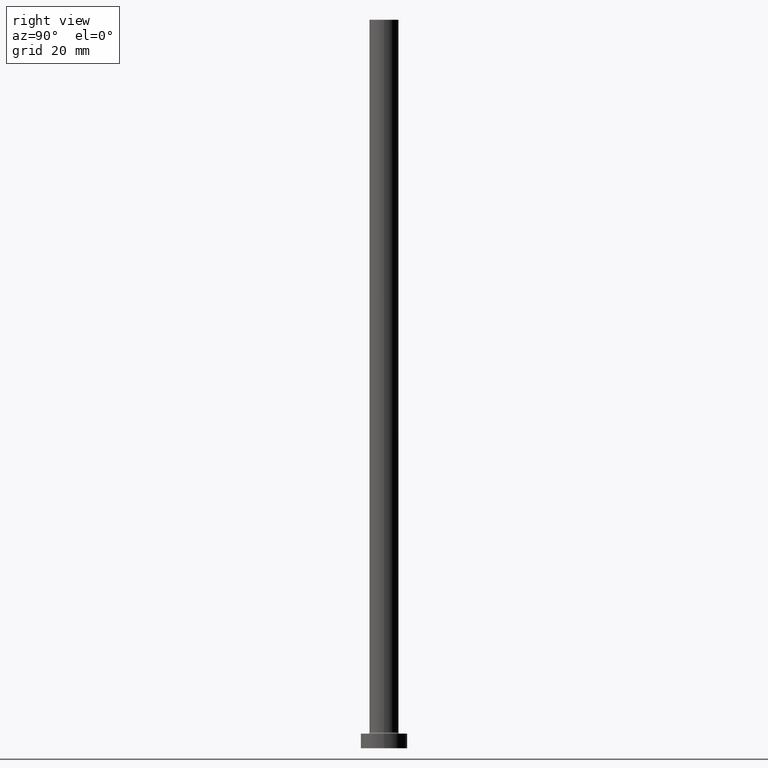
[diagram: clean part render]
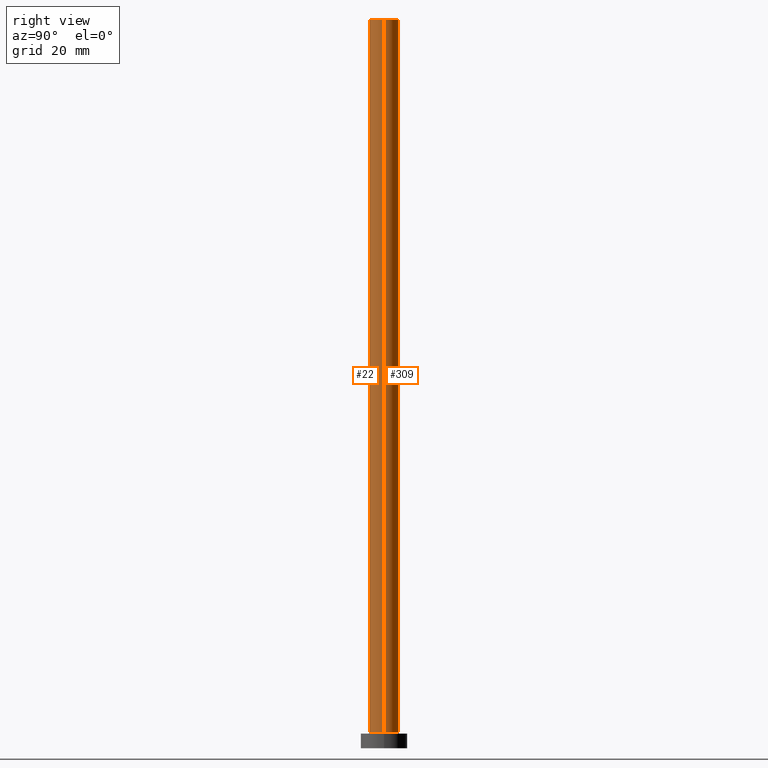
[diagram: same view with one multi-face feature highlighted, each face labeled with its STEP entity id]
A machine part, right view. The highlighted faces form ONE feature: a constant-radius fillet chain: 2 tangent blend faces with common blend radius 5 mm. The faces share edges in the B-rep.
Their STEP definitions:
[1] entity #309 (Cylinder):
#9 = EDGE_CURVE ( 'NONE', #207, #307, #457, .T. ) ;
#18 = CYLINDRICAL_SURFACE ( 'NONE', #292, 5.000000000000000000 ) ;
#39 = AXIS2_PLACEMENT_3D ( 'NONE', #220, #285, #218 ) ;
#50 = DIRECTION ( 'NONE',  ( 0.000000000000000000, 0.000000000000000000, 1.000000000000000000 ) ) ;
#85 = DIRECTION ( 'NONE',  ( -1.000000000000000000, 0.000000000000000000, 0.000000000000000000 ) ) ;
#89 = CIRCLE ( 'NONE', #39, 5.000000000000000000 ) ;
#94 = ORIENTED_EDGE ( 'NONE', *, *, #192, .T. ) ;
#123 = VERTEX_POINT ( 'NONE', #295 ) ;
#125 = DIRECTION ( 'NONE',  ( 1.000000000000000000, 0.000000000000000000, 0.000000000000000000 ) ) ;
#133 = ORIENTED_EDGE ( 'NONE', *, *, #214, .T. ) ;
#146 = FACE_OUTER_BOUND ( 'NONE', #325, .T. ) ;
#155 = DIRECTION ( 'NONE',  ( -0.000000000000000000, -0.000000000000000000, -1.000000000000000000 ) ) ;
#176 = LINE ( 'NONE', #322, #274 ) ;
#179 = CARTESIAN_POINT ( 'NONE',  ( -5.000000000000000000, 0.000000000000000000, 250.0000000000000000 ) ) ;
#192 = EDGE_CURVE ( 'NONE', #207, #123, #176, .T. ) ;
#199 = EDGE_CURVE ( 'NONE', #307, #444, #429, .T. ) ;
#207 = VERTEX_POINT ( 'NONE', #289 ) ;
#214 = EDGE_CURVE ( 'NONE', #123, #444, #89, .T. ) ;
#217 = CARTESIAN_POINT ( 'NONE',  ( -5.000000000000000000, 0.000000000000000000, 250.0000000000000000 ) ) ;
#218 = DIRECTION ( 'NONE',  ( 1.000000000000000000, 0.000000000000000000, 0.000000000000000000 ) ) ;
#220 = CARTESIAN_POINT ( 'NONE',  ( 0.000000000000000000, 0.000000000000000000, 5.500000000000005329 ) ) ;
#253 = VECTOR ( 'NONE', #363, 1000.000000000000000 ) ;
#260 = CARTESIAN_POINT ( 'NONE',  ( 0.000000000000000000, 0.000000000000000000, 250.0000000000000000 ) ) ;
#269 = ORIENTED_EDGE ( 'NONE', *, *, #199, .F. ) ;
#274 = VECTOR ( 'NONE', #362, 1000.000000000000000 ) ;
#285 = DIRECTION ( 'NONE',  ( 0.000000000000000000, 0.000000000000000000, 1.000000000000000000 ) ) ;
#289 = CARTESIAN_POINT ( 'NONE',  ( 5.000000000000000000, 6.123233995736766282E-16, 250.0000000000000000 ) ) ;
#292 = AXIS2_PLACEMENT_3D ( 'NONE', #367, #155, #85 ) ;
#295 = CARTESIAN_POINT ( 'NONE',  ( 5.000000000000000000, 6.123233995736766282E-16, 5.500000000000005329 ) ) ;
#307 = VERTEX_POINT ( 'NONE', #217 ) ;
#309 = ADVANCED_FACE ( 'NONE', ( #146 ), #18, .T. ) ;
#322 = CARTESIAN_POINT ( 'NONE',  ( 5.000000000000000000, 6.123233995736766282E-16, 250.0000000000000000 ) ) ;
#325 = EDGE_LOOP ( 'NONE', ( #381, #94, #133, #269 ) ) ;
#362 = DIRECTION ( 'NONE',  ( -0.000000000000000000, -0.000000000000000000, -1.000000000000000000 ) ) ;
#363 = DIRECTION ( 'NONE',  ( -0.000000000000000000, -0.000000000000000000, -1.000000000000000000 ) ) ;
#367 = CARTESIAN_POINT ( 'NONE',  ( 0.000000000000000000, 0.000000000000000000, 250.0000000000000000 ) ) ;
#381 = ORIENTED_EDGE ( 'NONE', *, *, #9, .F. ) ;
#429 = LINE ( 'NONE', #179, #253 ) ;
#432 = AXIS2_PLACEMENT_3D ( 'NONE', #260, #50, #125 ) ;
#444 = VERTEX_POINT ( 'NONE', #445 ) ;
#445 = CARTESIAN_POINT ( 'NONE',  ( -5.000000000000000000, 0.000000000000000000, 5.500000000000005329 ) ) ;
#457 = CIRCLE ( 'NONE', #432, 5.000000000000000000 ) ;
[2] entity #22 (Cylinder):
#22 = ADVANCED_FACE ( 'NONE', ( #83 ), #225, .T. ) ;
#36 = EDGE_CURVE ( 'NONE', #307, #207, #455, .T. ) ;
#45 = CARTESIAN_POINT ( 'NONE',  ( 0.000000000000000000, 0.000000000000000000, 250.0000000000000000 ) ) ;
#65 = DIRECTION ( 'NONE',  ( 0.000000000000000000, 0.000000000000000000, 1.000000000000000000 ) ) ;
#67 = AXIS2_PLACEMENT_3D ( 'NONE', #45, #190, #333 ) ;
#79 = CARTESIAN_POINT ( 'NONE',  ( 0.000000000000000000, 0.000000000000000000, 250.0000000000000000 ) ) ;
#83 = FACE_OUTER_BOUND ( 'NONE', #126, .T. ) ;
#117 = EDGE_CURVE ( 'NONE', #444, #123, #335, .T. ) ;
#123 = VERTEX_POINT ( 'NONE', #295 ) ;
#126 = EDGE_LOOP ( 'NONE', ( #358, #388, #239, #338 ) ) ;
#176 = LINE ( 'NONE', #322, #274 ) ;
#179 = CARTESIAN_POINT ( 'NONE',  ( -5.000000000000000000, 0.000000000000000000, 250.0000000000000000 ) ) ;
#190 = DIRECTION ( 'NONE',  ( -0.000000000000000000, -0.000000000000000000, -1.000000000000000000 ) ) ;
#192 = EDGE_CURVE ( 'NONE', #207, #123, #176, .T. ) ;
#199 = EDGE_CURVE ( 'NONE', #307, #444, #429, .T. ) ;
#207 = VERTEX_POINT ( 'NONE', #289 ) ;
#217 = CARTESIAN_POINT ( 'NONE',  ( -5.000000000000000000, 0.000000000000000000, 250.0000000000000000 ) ) ;
#222 = AXIS2_PLACEMENT_3D ( 'NONE', #313, #65, #351 ) ;
#225 = CYLINDRICAL_SURFACE ( 'NONE', #67, 5.000000000000000000 ) ;
#239 = ORIENTED_EDGE ( 'NONE', *, *, #199, .T. ) ;
#247 = DIRECTION ( 'NONE',  ( 0.000000000000000000, 0.000000000000000000, 1.000000000000000000 ) ) ;
#253 = VECTOR ( 'NONE', #363, 1000.000000000000000 ) ;
#274 = VECTOR ( 'NONE', #362, 1000.000000000000000 ) ;
#289 = CARTESIAN_POINT ( 'NONE',  ( 5.000000000000000000, 6.123233995736766282E-16, 250.0000000000000000 ) ) ;
#295 = CARTESIAN_POINT ( 'NONE',  ( 5.000000000000000000, 6.123233995736766282E-16, 5.500000000000005329 ) ) ;
#307 = VERTEX_POINT ( 'NONE', #217 ) ;
#313 = CARTESIAN_POINT ( 'NONE',  ( 0.000000000000000000, 0.000000000000000000, 5.500000000000005329 ) ) ;
#322 = CARTESIAN_POINT ( 'NONE',  ( 5.000000000000000000, 6.123233995736766282E-16, 250.0000000000000000 ) ) ;
#330 = AXIS2_PLACEMENT_3D ( 'NONE', #79, #247, #368 ) ;
#333 = DIRECTION ( 'NONE',  ( -1.000000000000000000, 0.000000000000000000, 0.000000000000000000 ) ) ;
#335 = CIRCLE ( 'NONE', #222, 5.000000000000000000 ) ;
#338 = ORIENTED_EDGE ( 'NONE', *, *, #117, .T. ) ;
#351 = DIRECTION ( 'NONE',  ( 1.000000000000000000, 0.000000000000000000, 0.000000000000000000 ) ) ;
#358 = ORIENTED_EDGE ( 'NONE', *, *, #192, .F. ) ;
#362 = DIRECTION ( 'NONE',  ( -0.000000000000000000, -0.000000000000000000, -1.000000000000000000 ) ) ;
#363 = DIRECTION ( 'NONE',  ( -0.000000000000000000, -0.000000000000000000, -1.000000000000000000 ) ) ;
#368 = DIRECTION ( 'NONE',  ( 1.000000000000000000, 0.000000000000000000, 0.000000000000000000 ) ) ;
#388 = ORIENTED_EDGE ( 'NONE', *, *, #36, .F. ) ;
#429 = LINE ( 'NONE', #179, #253 ) ;
#444 = VERTEX_POINT ( 'NONE', #445 ) ;
#445 = CARTESIAN_POINT ( 'NONE',  ( -5.000000000000000000, 0.000000000000000000, 5.500000000000005329 ) ) ;
#455 = CIRCLE ( 'NONE', #330, 5.000000000000000000 ) ;